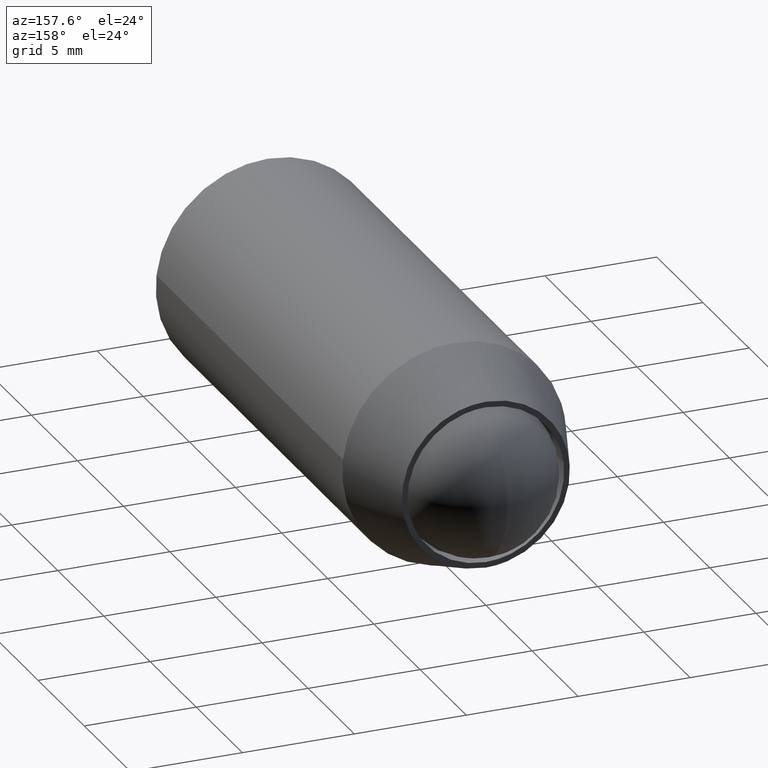
[diagram: clean part render]
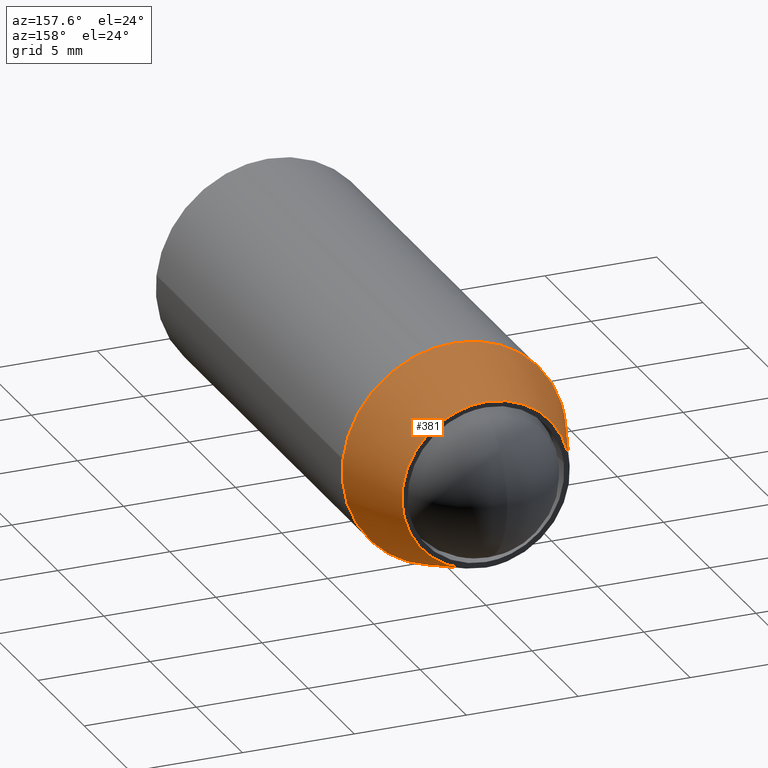
[diagram: same view with one face highlighted and labeled with its STEP entity id]
A machine part, auxiliary view. The second image highlights one B-rep face of the part: STEP entity #381.
In plain terms, the highlighted face is a freeform B-spline surface patch.
Its self-contained STEP definition (entity closure, byte-faithful):
#230=CARTESIAN_POINT('',(-3.015807974484926,0.085858675000000,-2.175776602395827));
#231=CARTESIAN_POINT('',(-1.985204626224891,0.085858675000000,-3.604278863515390));
#232=CARTESIAN_POINT('',(-0.227024256395250,0.085858675000000,-3.711813781631319));
#233=CARTESIAN_POINT('',(3.484789525236069,0.085858675000000,-3.938838038026567));
#234=CARTESIAN_POINT('',(3.711813781631318,0.085858675000000,-0.227024256395250));
#235=CARTESIAN_POINT('',(3.938838038026567,0.085858675000000,3.484789525236068));
#236=CARTESIAN_POINT('',(0.227024256395250,0.085858675000000,3.711813781631317));
#237=CARTESIAN_POINT('',(-3.484789525236069,0.085858675000000,3.938838038026567));
#238=CARTESIAN_POINT('',(-3.711813781631318,0.085858675000000,0.227024256395249));
#239=CARTESIAN_POINT('',(-4.080844362112899,-3.522352141875000,-2.944154852107463));
#240=CARTESIAN_POINT('',(-2.686282142334985,-3.522352141875000,-4.877134487374501));
#241=CARTESIAN_POINT('',(-0.307198158706261,-3.522352141875000,-5.022645497371284));
#242=CARTESIAN_POINT('',(4.715447338665022,-3.522352141875000,-5.329843656077545));
#243=CARTESIAN_POINT('',(5.022645497371284,-3.522352141875000,-0.307198158706262));
#244=CARTESIAN_POINT('',(5.329843656077545,-3.522352141875000,4.715447338665022));
#245=CARTESIAN_POINT('',(0.307198158706261,-3.522352141875000,5.022645497371283));
#246=CARTESIAN_POINT('',(-4.715447338665022,-3.522352141875000,5.329843656077543));
#247=CARTESIAN_POINT('',(-5.022645497371284,-3.522352141875000,0.307198158706260));
#255=(BOUNDED_SURFACE()B_SPLINE_SURFACE(2,1,((#230,#239),(#231,#240),(#232,#241),(#233,#242),(#234,#243),(#235,#244),(#236,#245),(#237,#246),(#238,#247)),.UNSPECIFIED.,.F.,.F.,.U.)B_SPLINE_SURFACE_WITH_KNOTS((3,2,2,2,3),(2,2),(0.0,4.668911721678933,13.006254081819881,21.343596441960841,29.680938802101789),(0.0,3.839777720209247),.UNSPECIFIED.)GEOMETRIC_REPRESENTATION_ITEM()RATIONAL_B_SPLINE_SURFACE(((0.855662221768731,0.855662221768731),(0.835979797464467,0.835979797464467),(1.0,1.0),(0.707106781186548,0.707106781186548),(1.0,1.0),(0.707106781186548,0.707106781186548),(1.0,1.0),(0.707106781186548,0.707106781186548),(1.0,1.0)))REPRESENTATION_ITEM('')SURFACE());
#256=CARTESIAN_POINT('',(-3.041150898637995,-4.158979E-013,-2.194060439394151));
#257=VERTEX_POINT('',#256);
#258=CARTESIAN_POINT('',(0.0,0.0,-3.750000000000001));
#259=VERTEX_POINT('',#258);
#260=CARTESIAN_POINT('',(-3.041150898637995,-4.158979E-013,-2.194060439394150));
#261=CARTESIAN_POINT('',(-1.918606983585663,0.0,-3.750000000000000));
#262=CARTESIAN_POINT('',(0.0,0.0,-3.750000000000001));
#270=(BOUNDED_CURVE()B_SPLINE_CURVE(2,(#260,#261,#262),.UNSPECIFIED.,.F.,.U.)B_SPLINE_CURVE_WITH_KNOTS((3,3),(0.850743050382329,1.0),.UNSPECIFIED.)CURVE()GEOMETRIC_REPRESENTATION_ITEM()RATIONAL_B_SPLINE_CURVE((0.859068214727195,0.825134606384812,1.0))REPRESENTATION_ITEM(''));
#271=EDGE_CURVE('',#257,#259,#270,.T.);
#272=ORIENTED_EDGE('',*,*,#271,.T.);
#273=CARTESIAN_POINT('',(0.0,0.0,3.749999999999999));
#274=VERTEX_POINT('',#273);
#275=CARTESIAN_POINT('',(0.0,0.0,-3.750000000000001));
#276=CARTESIAN_POINT('',(3.750000000000000,0.0,-3.750000000000002));
#277=CARTESIAN_POINT('',(3.750000000000000,0.0,-7.898711E-016));
#278=CARTESIAN_POINT('',(3.750000000000000,0.0,3.749999999999999));
#279=CARTESIAN_POINT('',(0.0,0.0,3.749999999999999));
#287=(BOUNDED_CURVE()B_SPLINE_CURVE(2,(#275,#276,#277,#278,#279),.UNSPECIFIED.,.F.,.U.)B_SPLINE_CURVE_WITH_KNOTS((3,2,3),(0.0,0.250000000000000,0.500000000000000),.UNSPECIFIED.)CURVE()GEOMETRIC_REPRESENTATION_ITEM()RATIONAL_B_SPLINE_CURVE((1.0,0.707106781186547,1.0,0.707106781186547,1.0))REPRESENTATION_ITEM(''));
#288=EDGE_CURVE('',#259,#274,#287,.T.);
#289=ORIENTED_EDGE('',*,*,#288,.T.);
#290=CARTESIAN_POINT('',(-3.743005494082165,-5.431509E-012,0.228932023285429));
#291=VERTEX_POINT('',#290);
#292=CARTESIAN_POINT('',(0.0,0.0,3.749999999999999));
#293=CARTESIAN_POINT('',(-3.527647750840481,0.0,3.749999999999998));
#294=CARTESIAN_POINT('',(-3.743005494082165,-5.431509E-012,0.228932023285429));
#302=(BOUNDED_CURVE()B_SPLINE_CURVE(2,(#292,#293,#294),.UNSPECIFIED.,.F.,.U.)B_SPLINE_CURVE_WITH_KNOTS((3,3),(0.500000000000000,0.739332962239240),.UNSPECIFIED.)CURVE()GEOMETRIC_REPRESENTATION_ITEM()RATIONAL_B_SPLINE_CURVE((1.0,0.719603993286362,0.976072041667355))REPRESENTATION_ITEM(''));
#303=EDGE_CURVE('',#274,#291,#302,.T.);
#304=ORIENTED_EDGE('',*,*,#303,.T.);
#305=CARTESIAN_POINT('',(-4.990674234761062,-3.434346994595417,0.305238698078963));
#306=VERTEX_POINT('',#305);
#307=CARTESIAN_POINT('',(-3.743005494082165,-5.431509E-012,0.228932023285429));
#308=CARTESIAN_POINT('',(-4.990674234761062,-3.434346994595417,0.305238698078963));
#309=QUASI_UNIFORM_CURVE('',1,(#307,#308),.UNSPECIFIED.,.F.,.U.);
#310=EDGE_CURVE('',#291,#306,#309,.T.);
#311=ORIENTED_EDGE('',*,*,#310,.T.);
#312=CARTESIAN_POINT('',(0.0,-3.434347000000000,4.999999999999999));
#313=VERTEX_POINT('',#312);
#314=CARTESIAN_POINT('',(0.0,-3.434347000000000,4.999999999999999));
#315=CARTESIAN_POINT('',(-4.703534110934704,-3.434347000000000,4.999999999999999));
#316=CARTESIAN_POINT('',(-4.990674234761062,-3.434346994595417,0.305238698078963));
#324=(BOUNDED_CURVE()B_SPLINE_CURVE(2,(#314,#315,#316),.UNSPECIFIED.,.F.,.U.)B_SPLINE_CURVE_WITH_KNOTS((3,3),(0.500000000000000,0.739333100519220),.UNSPECIFIED.)CURVE()GEOMETRIC_REPRESENTATION_ITEM()RATIONAL_B_SPLINE_CURVE((1.0,0.719603831281288,0.976072338027853))REPRESENTATION_ITEM(''));
#325=EDGE_CURVE('',#313,#306,#324,.T.);
#326=ORIENTED_EDGE('',*,*,#325,.F.);
#327=CARTESIAN_POINT('',(4.967346893417139,-3.434347000000000,0.570495258870046));
#328=VERTEX_POINT('',#327);
#329=CARTESIAN_POINT('',(4.967346893417139,-3.434347000000000,0.570495258870046));
#330=CARTESIAN_POINT('',(4.458622315056616,-3.434347000000000,4.999999999999999));
#331=CARTESIAN_POINT('',(0.0,-3.434347000000000,4.999999999999999));
#339=(BOUNDED_CURVE()B_SPLINE_CURVE(2,(#329,#330,#331),.UNSPECIFIED.,.F.,.U.)B_SPLINE_CURVE_WITH_KNOTS((3,3),(0.269767481110062,0.500000000000000),.UNSPECIFIED.)CURVE()GEOMETRIC_REPRESENTATION_ITEM()RATIONAL_B_SPLINE_CURVE((0.957344278464731,0.730265825867189,1.0))REPRESENTATION_ITEM(''));
#340=EDGE_CURVE('',#328,#313,#339,.T.);
#341=ORIENTED_EDGE('',*,*,#340,.F.);
#342=CARTESIAN_POINT('',(0.0,-3.434347000000000,-5.000000000000001));
#343=VERTEX_POINT('',#342);
#344=CARTESIAN_POINT('',(0.0,-3.434347000000000,-5.000000000000001));
#345=CARTESIAN_POINT('',(5.000000000000001,-3.434347000000000,-5.000000000000002));
#346=CARTESIAN_POINT('',(5.0,-3.434347000000000,-7.898711E-016));
#347=CARTESIAN_POINT('',(5.0,-3.434347000000000,0.286182102906041));
#348=CARTESIAN_POINT('',(4.967346893417139,-3.434347000000000,0.570495258870046));
#356=(BOUNDED_CURVE()B_SPLINE_CURVE(2,(#344,#345,#346,#347,#348),.UNSPECIFIED.,.F.,.U.)B_SPLINE_CURVE_WITH_KNOTS((3,2,3),(0.0,0.250000000000000,0.269767481110062),.UNSPECIFIED.)CURVE()GEOMETRIC_REPRESENTATION_ITEM()RATIONAL_B_SPLINE_CURVE((1.0,0.707106781186548,1.0,0.976840955319359,0.957344278464731))REPRESENTATION_ITEM(''));
#357=EDGE_CURVE('',#343,#328,#356,.T.);
#358=ORIENTED_EDGE('',*,*,#357,.F.);
#359=CARTESIAN_POINT('',(-4.054867864852410,-3.434347000000233,-2.925413919189575));
#360=VERTEX_POINT('',#359);
#361=CARTESIAN_POINT('',(-4.054867864852410,-3.434347000000233,-2.925413919189575));
#362=CARTESIAN_POINT('',(-2.558142644784862,-3.434346999999999,-5.000000000000002));
#363=CARTESIAN_POINT('',(0.0,-3.434347000000000,-5.000000000000001));
#371=(BOUNDED_CURVE()B_SPLINE_CURVE(2,(#361,#362,#363),.UNSPECIFIED.,.F.,.U.)B_SPLINE_CURVE_WITH_KNOTS((3,3),(0.850743050382138,1.0),.UNSPECIFIED.)CURVE()GEOMETRIC_REPRESENTATION_ITEM()RATIONAL_B_SPLINE_CURVE((0.859068214727282,0.825134606384588,1.0))REPRESENTATION_ITEM(''));
#372=EDGE_CURVE('',#360,#343,#371,.T.);
#373=ORIENTED_EDGE('',*,*,#372,.F.);
#374=CARTESIAN_POINT('',(-3.041150898637995,-4.158979E-013,-2.194060439394151));
#375=CARTESIAN_POINT('',(-4.054867864852410,-3.434347000000233,-2.925413919189575));
#376=QUASI_UNIFORM_CURVE('',1,(#374,#375),.UNSPECIFIED.,.F.,.U.);
#377=EDGE_CURVE('',#257,#360,#376,.T.);
#378=ORIENTED_EDGE('',*,*,#377,.F.);
#379=EDGE_LOOP('',(#272,#289,#304,#311,#326,#341,#358,#373,#378));
#380=FACE_OUTER_BOUND('',#379,.T.);
#381=ADVANCED_FACE('',(#380),#255,.T.);